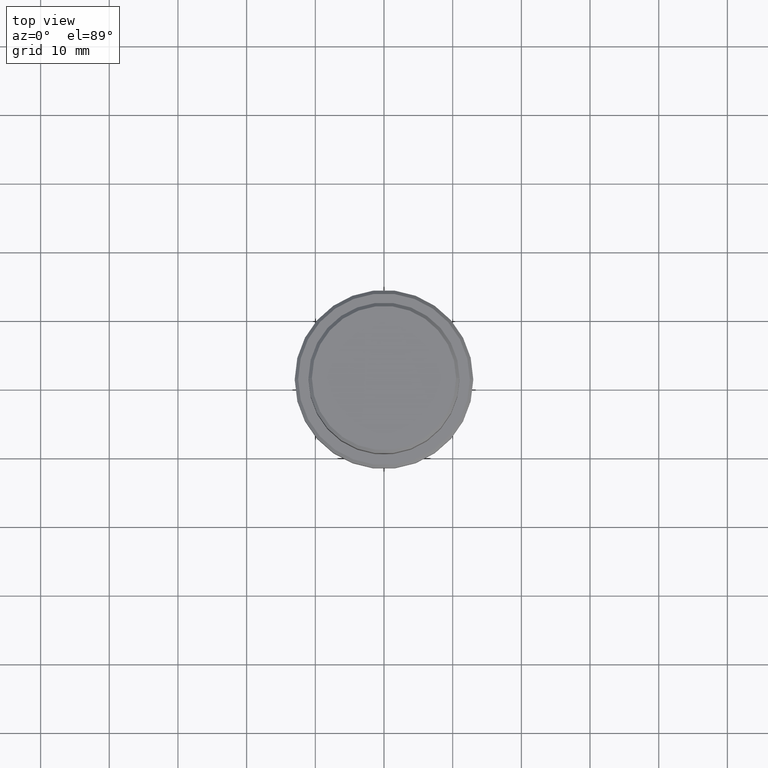
[diagram: clean part render]
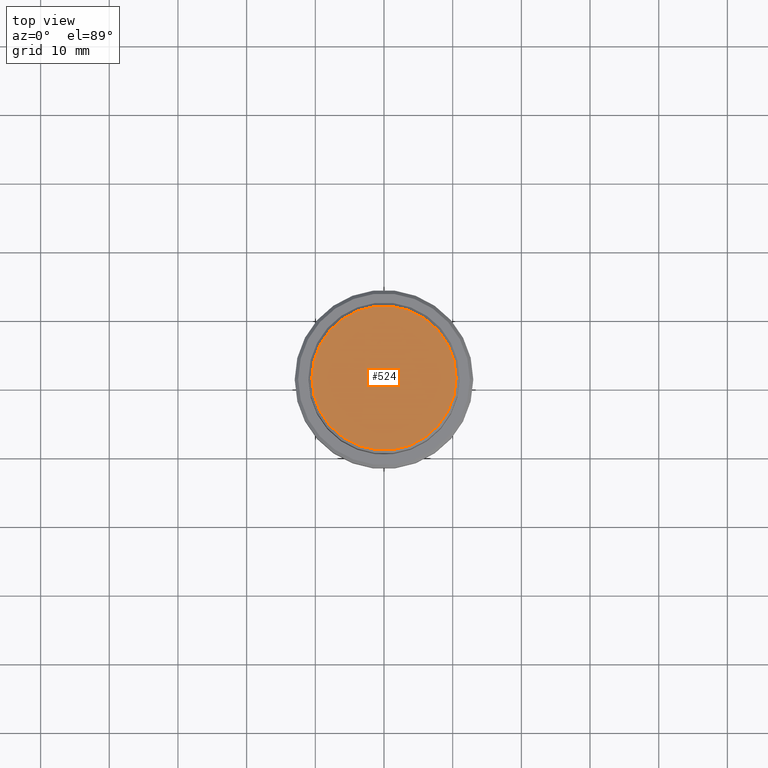
[diagram: same view with one face highlighted and labeled with its STEP entity id]
A machine part, top view. The second image highlights one B-rep face of the part: STEP entity #524.
In plain terms, the highlighted planar face has unit normal (0, -0, 1).
Its self-contained STEP definition (entity closure, byte-faithful):
#8 = CARTESIAN_POINT ( 'NONE',  ( 10.49999999999999467, 1.316495309083403632E-15, 0.000000000000000000 ) ) ;
#33 = DIRECTION ( 'NONE',  ( 1.000000000000000000, 0.000000000000000000, 0.000000000000000000 ) ) ;
#51 = DIRECTION ( 'NONE',  ( 0.000000000000000000, -0.000000000000000000, 1.000000000000000000 ) ) ;
#137 = PLANE ( 'NONE',  #283 ) ;
#236 = CIRCLE ( 'NONE', #1022, 10.49999999999999467 ) ;
#279 = DIRECTION ( 'NONE',  ( 1.000000000000000000, 0.000000000000000000, 0.000000000000000000 ) ) ;
#283 = AXIS2_PLACEMENT_3D ( 'NONE', #1331, #51, #279 ) ;
#388 = DIRECTION ( 'NONE',  ( 1.000000000000000000, 0.000000000000000000, 0.000000000000000000 ) ) ;
#460 = FACE_OUTER_BOUND ( 'NONE', #684, .T. ) ;
#461 = VERTEX_POINT ( 'NONE', #8 ) ;
#494 = ORIENTED_EDGE ( 'NONE', *, *, #581, .T. ) ;
#524 = ADVANCED_FACE ( 'NONE', ( #460 ), #137, .T. ) ;
#537 = CARTESIAN_POINT ( 'NONE',  ( -10.49999999999999467, 0.000000000000000000, 0.000000000000000000 ) ) ;
#581 = EDGE_CURVE ( 'NONE', #732, #461, #236, .T. ) ;
#607 = AXIS2_PLACEMENT_3D ( 'NONE', #1224, #1025, #388 ) ;
#625 = EDGE_CURVE ( 'NONE', #461, #732, #984, .T. ) ;
#684 = EDGE_LOOP ( 'NONE', ( #494, #1091 ) ) ;
#732 = VERTEX_POINT ( 'NONE', #537 ) ;
#821 = DIRECTION ( 'NONE',  ( -0.000000000000000000, -0.000000000000000000, 1.000000000000000000 ) ) ;
#984 = CIRCLE ( 'NONE', #607, 10.49999999999999467 ) ;
#1022 = AXIS2_PLACEMENT_3D ( 'NONE', #1124, #821, #33 ) ;
#1025 = DIRECTION ( 'NONE',  ( -0.000000000000000000, -0.000000000000000000, 1.000000000000000000 ) ) ;
#1091 = ORIENTED_EDGE ( 'NONE', *, *, #625, .T. ) ;
#1124 = CARTESIAN_POINT ( 'NONE',  ( 0.000000000000000000, 0.000000000000000000, 0.000000000000000000 ) ) ;
#1224 = CARTESIAN_POINT ( 'NONE',  ( 0.000000000000000000, 0.000000000000000000, 0.000000000000000000 ) ) ;
#1331 = CARTESIAN_POINT ( 'NONE',  ( 0.000000000000000000, 0.000000000000000000, 0.000000000000000000 ) ) ;